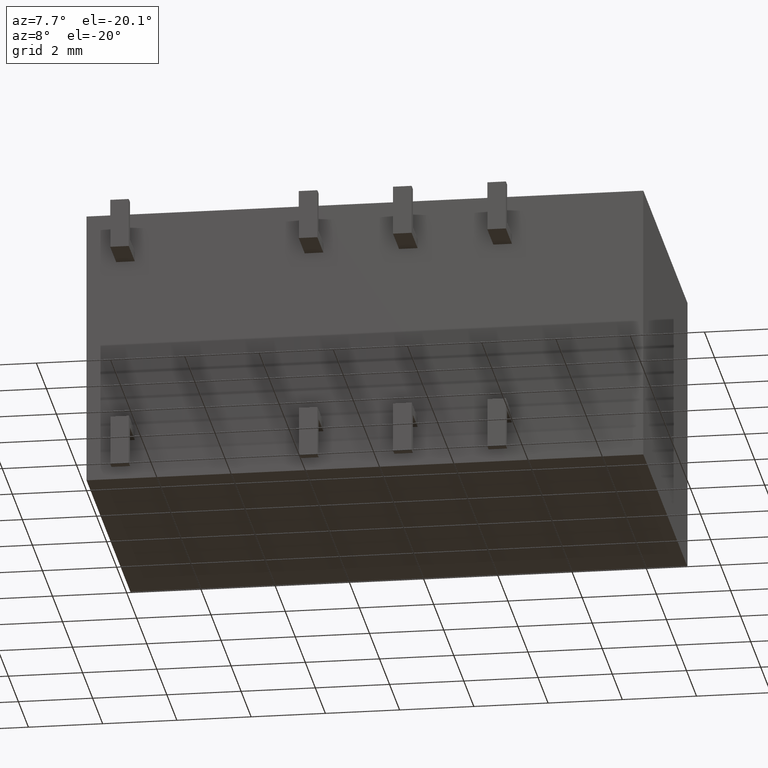
[diagram: clean part render]
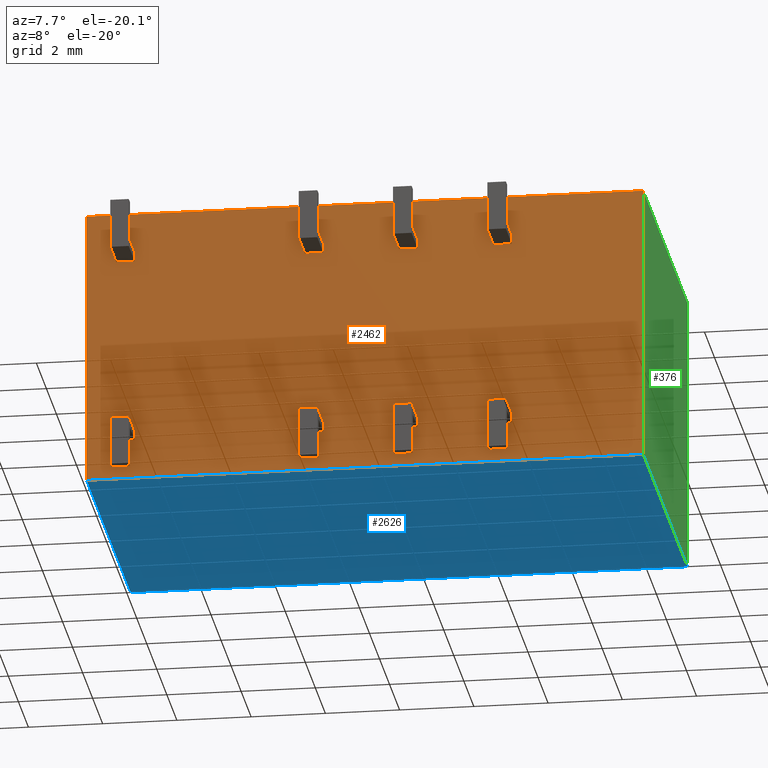
[diagram: same view with three faces highlighted in distinct colors, each labeled with its STEP entity id]
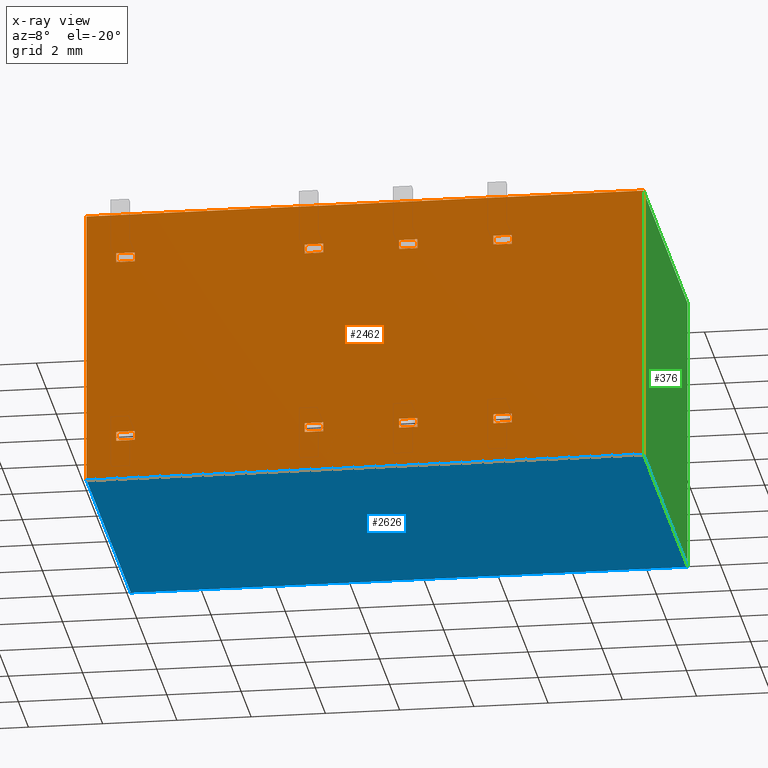
[diagram: x-ray of the same camera — body ghosted, the three highlighted faces saturated]
A machine part, auxiliary view with three faces highlighted in distinct colors.
The next image is the same camera in x-ray (body ghosted, the three faces saturated) — at least one of them is partly hidden behind the body in this view.
Their STEP definitions:

[orange] entity #2462 — the highlighted planar face has unit normal (0, -1, 0).
#125 = EDGE_CURVE ( 'NONE', #807, #4202, #2113, .T. ) ;
#127 = DIRECTION ( 'NONE',  ( 1.000000000000000000, 0.0000000000000000000, 0.0000000000000000000 ) ) ;
#177 = DIRECTION ( 'NONE',  ( 1.000000000000000000, 0.0000000000000000000, 0.0000000000000000000 ) ) ;
#196 = VECTOR ( 'NONE', #1744, 1000.000000000000000 ) ;
#197 = DIRECTION ( 'NONE',  ( -1.000000000000000000, -0.0000000000000000000, -0.0000000000000000000 ) ) ;
#199 = PLANE ( 'NONE',  #2382 ) ;
#228 = VERTEX_POINT ( 'NONE', #3025 ) ;
#233 = CARTESIAN_POINT ( 'NONE',  ( 8.919999999999999900, 0.0000000000000000000, -1.335000000000000000 ) ) ;
#240 = EDGE_CURVE ( 'NONE', #1503, #2900, #1002, .T. ) ;
#243 = ORIENTED_EDGE ( 'NONE', *, *, #3757, .T. ) ;
#254 = CARTESIAN_POINT ( 'NONE',  ( 10.95999999999999900, 3.177958443787379800E-016, -1.334999999999999700 ) ) ;
#263 = CARTESIAN_POINT ( 'NONE',  ( 10.95999999999999900, 2.871796744000541500E-016, -1.084999999999999500 ) ) ;
#266 = VERTEX_POINT ( 'NONE', #5043 ) ;
#334 = ORIENTED_EDGE ( 'NONE', *, *, #3109, .F. ) ;
#340 = CARTESIAN_POINT ( 'NONE',  ( 8.919999999999999900, 3.177958443787379800E-016, -6.165000000000000000 ) ) ;
#343 = EDGE_LOOP ( 'NONE', ( #1833, #2194, #1478, #4646 ) ) ;
#362 = VECTOR ( 'NONE', #127, 1000.000000000000000 ) ;
#429 = VECTOR ( 'NONE', #177, 1000.000000000000000 ) ;
#442 = ORIENTED_EDGE ( 'NONE', *, *, #1710, .F. ) ;
#449 = VECTOR ( 'NONE', #4125, 1000.000000000000000 ) ;
#465 = CARTESIAN_POINT ( 'NONE',  ( 11.45999999999999900, 0.0000000000000000000, -6.415000000000000900 ) ) ;
#506 = CARTESIAN_POINT ( 'NONE',  ( 0.7999999999999988200, 3.177958443787379800E-016, -1.334999999999999700 ) ) ;
#508 = CARTESIAN_POINT ( 'NONE',  ( 10.95999999999999900, 2.871796744000541500E-016, -1.084999999999999500 ) ) ;
#514 = EDGE_CURVE ( 'NONE', #1796, #2900, #3482, .T. ) ;
#516 = ORIENTED_EDGE ( 'NONE', *, *, #2283, .F. ) ;
#537 = EDGE_CURVE ( 'NONE', #4011, #2357, #4962, .T. ) ;
#576 = LINE ( 'NONE', #1582, #1410 ) ;
#581 = VECTOR ( 'NONE', #2763, 1000.000000000000000 ) ;
#610 = VERTEX_POINT ( 'NONE', #4277 ) ;
#611 = CARTESIAN_POINT ( 'NONE',  ( 0.0000000000000000000, 0.0000000000000000000, 0.0000000000000000000 ) ) ;
#653 = EDGE_CURVE ( 'NONE', #4214, #4323, #1648, .T. ) ;
#654 = CARTESIAN_POINT ( 'NONE',  ( 5.879999999999999000, 3.177958443787379800E-016, -1.334999999999999700 ) ) ;
#663 = CARTESIAN_POINT ( 'NONE',  ( 0.7999999999999988200, 3.177958443787379800E-016, -6.165000000000000000 ) ) ;
#735 = EDGE_LOOP ( 'NONE', ( #4317, #5140, #3827, #4966 ) ) ;
#741 = ORIENTED_EDGE ( 'NONE', *, *, #514, .T. ) ;
#742 = VECTOR ( 'NONE', #3556, 1000.000000000000000 ) ;
#744 = LINE ( 'NONE', #4734, #997 ) ;
#760 = LINE ( 'NONE', #5265, #1455 ) ;
#777 = VECTOR ( 'NONE', #4113, 1000.000000000000000 ) ;
#807 = VERTEX_POINT ( 'NONE', #2204 ) ;
#873 = ORIENTED_EDGE ( 'NONE', *, *, #4958, .T. ) ;
#888 = VECTOR ( 'NONE', #1758, 1000.000000000000000 ) ;
#893 = CARTESIAN_POINT ( 'NONE',  ( 5.879999999999999000, 3.177958443787379800E-016, -6.165000000000000000 ) ) ;
#918 = CARTESIAN_POINT ( 'NONE',  ( 8.419999999999998200, 2.871796744000541500E-016, -1.084999999999999500 ) ) ;
#924 = CARTESIAN_POINT ( 'NONE',  ( 0.7999999999999988200, 2.871796744000541500E-016, -1.084999999999999500 ) ) ;
#938 = FACE_BOUND ( 'NONE', #3741, .T. ) ;
#985 = CARTESIAN_POINT ( 'NONE',  ( 5.879999999999999000, 2.871796744000541500E-016, -1.084999999999999500 ) ) ;
#991 = CARTESIAN_POINT ( 'NONE',  ( 6.379999999999999000, 0.0000000000000000000, -6.415000000000000900 ) ) ;
#997 = VECTOR ( 'NONE', #2664, 1000.000000000000000 ) ;
#1002 = LINE ( 'NONE', #3882, #4713 ) ;
#1012 = CARTESIAN_POINT ( 'NONE',  ( 0.0000000000000000000, 0.0000000000000000000, 0.0000000000000000000 ) ) ;
#1016 = EDGE_CURVE ( 'NONE', #4239, #1523, #5095, .T. ) ;
#1028 = LINE ( 'NONE', #3470, #2569 ) ;
#1037 = EDGE_CURVE ( 'NONE', #3406, #610, #3621, .T. ) ;
#1039 = DIRECTION ( 'NONE',  ( 1.000000000000000000, 0.0000000000000000000, 0.0000000000000000000 ) ) ;
#1045 = CARTESIAN_POINT ( 'NONE',  ( 1.299999999999998900, 0.0000000000000000000, -6.415000000000000900 ) ) ;
#1063 = DIRECTION ( 'NONE',  ( 0.0000000000000000000, -1.224646799147353200E-016, 1.000000000000000000 ) ) ;
#1104 = CARTESIAN_POINT ( 'NONE',  ( 0.0000000000000000000, 0.0000000000000000000, 0.0000000000000000000 ) ) ;
#1121 = VERTEX_POINT ( 'NONE', #924 ) ;
#1143 = VECTOR ( 'NONE', #197, 1000.000000000000000 ) ;
#1211 = EDGE_CURVE ( 'NONE', #4570, #2865, #4588, .T. ) ;
#1223 = ORIENTED_EDGE ( 'NONE', *, *, #1016, .F. ) ;
#1240 = VECTOR ( 'NONE', #1513, 1000.000000000000000 ) ;
#1245 = VERTEX_POINT ( 'NONE', #1104 ) ;
#1248 = EDGE_CURVE ( 'NONE', #1121, #4323, #4057, .T. ) ;
#1251 = CARTESIAN_POINT ( 'NONE',  ( 8.919999999999999900, 3.177958443787379800E-016, -1.334999999999999700 ) ) ;
#1261 = EDGE_CURVE ( 'NONE', #1245, #5215, #2383, .T. ) ;
#1274 = CARTESIAN_POINT ( 'NONE',  ( 0.7999999999999988200, 3.177958443787379800E-016, -6.165000000000000000 ) ) ;
#1294 = LINE ( 'NONE', #5023, #196 ) ;
#1295 = DIRECTION ( 'NONE',  ( 0.0000000000000000000, -1.224646799147353200E-016, -1.000000000000000000 ) ) ;
#1316 = EDGE_CURVE ( 'NONE', #3551, #1796, #2628, .T. ) ;
#1319 = CARTESIAN_POINT ( 'NONE',  ( 10.95999999999999900, 2.871796744000541500E-016, -6.415000000000000900 ) ) ;
#1333 = VECTOR ( 'NONE', #3726, 1000.000000000000000 ) ;
#1348 = LINE ( 'NONE', #508, #4678 ) ;
#1353 = EDGE_CURVE ( 'NONE', #5215, #4907, #576, .T. ) ;
#1359 = EDGE_CURVE ( 'NONE', #2865, #4131, #4802, .T. ) ;
#1398 = LINE ( 'NONE', #4593, #449 ) ;
#1410 = VECTOR ( 'NONE', #3662, 1000.000000000000000 ) ;
#1423 = DIRECTION ( 'NONE',  ( 1.000000000000000000, 0.0000000000000000000, 0.0000000000000000000 ) ) ;
#1436 = DIRECTION ( 'NONE',  ( 0.0000000000000000000, -1.224646799147353200E-016, 1.000000000000000000 ) ) ;
#1452 = EDGE_LOOP ( 'NONE', ( #2953, #2984, #4378, #1719 ) ) ;
#1455 = VECTOR ( 'NONE', #1615, 1000.000000000000000 ) ;
#1461 = LINE ( 'NONE', #2554, #4991 ) ;
#1478 = ORIENTED_EDGE ( 'NONE', *, *, #2387, .T. ) ;
#1497 = DIRECTION ( 'NONE',  ( 0.0000000000000000000, -0.0000000000000000000, -1.000000000000000000 ) ) ;
#1503 = VERTEX_POINT ( 'NONE', #1319 ) ;
#1513 = DIRECTION ( 'NONE',  ( 0.0000000000000000000, -1.224646799147353200E-016, 1.000000000000000000 ) ) ;
#1523 = VERTEX_POINT ( 'NONE', #2104 ) ;
#1536 = LINE ( 'NONE', #1888, #4105 ) ;
#1582 = CARTESIAN_POINT ( 'NONE',  ( 15.00000000000000000, 0.0000000000000000000, 0.0000000000000000000 ) ) ;
#1615 = DIRECTION ( 'NONE',  ( 0.0000000000000000000, -1.224646799147353200E-016, -1.000000000000000000 ) ) ;
#1648 = LINE ( 'NONE', #3469, #3946 ) ;
#1652 = EDGE_CURVE ( 'NONE', #4570, #1838, #1028, .T. ) ;
#1706 = CARTESIAN_POINT ( 'NONE',  ( 8.919999999999999900, 3.177958443787379800E-016, -6.165000000000000000 ) ) ;
#1710 = EDGE_CURVE ( 'NONE', #1804, #5152, #3266, .T. ) ;
#1719 = ORIENTED_EDGE ( 'NONE', *, *, #3141, .F. ) ;
#1721 = VECTOR ( 'NONE', #4977, 1000.000000000000000 ) ;
#1744 = DIRECTION ( 'NONE',  ( 0.0000000000000000000, -1.224646799147353200E-016, 1.000000000000000000 ) ) ;
#1758 = DIRECTION ( 'NONE',  ( 0.0000000000000000000, -1.224646799147353200E-016, 1.000000000000000000 ) ) ;
#1796 = VERTEX_POINT ( 'NONE', #4007 ) ;
#1804 = VERTEX_POINT ( 'NONE', #2812 ) ;
#1833 = ORIENTED_EDGE ( 'NONE', *, *, #1211, .F. ) ;
#1838 = VERTEX_POINT ( 'NONE', #340 ) ;
#1848 = CARTESIAN_POINT ( 'NONE',  ( 6.379999999999999000, 2.871796744000541500E-016, -1.084999999999999500 ) ) ;
#1853 = LINE ( 'NONE', #654, #3897 ) ;
#1861 = CARTESIAN_POINT ( 'NONE',  ( 0.0000000000000000000, 0.0000000000000000000, -7.500000000000000000 ) ) ;
#1888 = CARTESIAN_POINT ( 'NONE',  ( 0.7999999999999988200, 3.177958443787379800E-016, -1.334999999999999700 ) ) ;
#1929 = CARTESIAN_POINT ( 'NONE',  ( 8.419999999999998200, 3.177958443787379800E-016, -1.334999999999999700 ) ) ;
#2001 = DIRECTION ( 'NONE',  ( 1.000000000000000000, 0.0000000000000000000, 0.0000000000000000000 ) ) ;
#2008 = VECTOR ( 'NONE', #3534, 1000.000000000000000 ) ;
#2031 = ORIENTED_EDGE ( 'NONE', *, *, #4281, .F. ) ;
#2034 = DIRECTION ( 'NONE',  ( 1.000000000000000000, 0.0000000000000000000, 0.0000000000000000000 ) ) ;
#2039 = CARTESIAN_POINT ( 'NONE',  ( 11.45999999999999900, 2.871796744000541500E-016, -1.084999999999999500 ) ) ;
#2040 = FACE_BOUND ( 'NONE', #735, .T. ) ;
#2104 = CARTESIAN_POINT ( 'NONE',  ( 5.879999999999999000, 2.871796744000541500E-016, -6.415000000000000900 ) ) ;
#2112 = DIRECTION ( 'NONE',  ( 1.000000000000000000, 0.0000000000000000000, 0.0000000000000000000 ) ) ;
#2113 = LINE ( 'NONE', #918, #1721 ) ;
#2129 = CARTESIAN_POINT ( 'NONE',  ( 0.0000000000000000000, 0.0000000000000000000, -7.500000000000000000 ) ) ;
#2149 = CARTESIAN_POINT ( 'NONE',  ( 5.879999999999999000, 3.177958443787379800E-016, -6.165000000000000000 ) ) ;
#2194 = ORIENTED_EDGE ( 'NONE', *, *, #1652, .T. ) ;
#2204 = CARTESIAN_POINT ( 'NONE',  ( 8.419999999999998200, 2.871796744000541500E-016, -1.084999999999999500 ) ) ;
#2283 = EDGE_CURVE ( 'NONE', #3551, #1503, #760, .T. ) ;
#2292 = CARTESIAN_POINT ( 'NONE',  ( 8.419999999999998200, 3.177958443787379800E-016, -6.165000000000000000 ) ) ;
#2315 = EDGE_CURVE ( 'NONE', #4239, #4011, #2813, .T. ) ;
#2325 = CARTESIAN_POINT ( 'NONE',  ( 15.00000000000000000, 0.0000000000000000000, 0.0000000000000000000 ) ) ;
#2357 = VERTEX_POINT ( 'NONE', #991 ) ;
#2367 = DIRECTION ( 'NONE',  ( 1.000000000000000000, 0.0000000000000000000, 0.0000000000000000000 ) ) ;
#2382 = AXIS2_PLACEMENT_3D ( 'NONE', #611, #3472, #1497 ) ;
#2383 = LINE ( 'NONE', #4071, #777 ) ;
#2387 = EDGE_CURVE ( 'NONE', #1838, #4131, #4662, .T. ) ;
#2432 = EDGE_CURVE ( 'NONE', #3406, #2609, #4216, .T. ) ;
#2462 = ADVANCED_FACE ( 'NONE', ( #5283, #3108, #3555, #2040, #2862, #2598, #4150, #938, #5030 ), #199, .T. ) ;
#2495 = EDGE_CURVE ( 'NONE', #3375, #1245, #4386, .T. ) ;
#2511 = DIRECTION ( 'NONE',  ( 0.0000000000000000000, -1.224646799147353200E-016, 1.000000000000000000 ) ) ;
#2526 = CARTESIAN_POINT ( 'NONE',  ( 0.7999999999999988200, 3.177958443787379800E-016, -6.165000000000000000 ) ) ;
#2530 = ORIENTED_EDGE ( 'NONE', *, *, #3557, .F. ) ;
#2554 = CARTESIAN_POINT ( 'NONE',  ( 5.879999999999999000, 3.177958443787379800E-016, -1.334999999999999700 ) ) ;
#2569 = VECTOR ( 'NONE', #5157, 1000.000000000000000 ) ;
#2587 = ORIENTED_EDGE ( 'NONE', *, *, #2969, .T. ) ;
#2598 = FACE_BOUND ( 'NONE', #343, .T. ) ;
#2605 = ORIENTED_EDGE ( 'NONE', *, *, #5129, .F. ) ;
#2609 = VERTEX_POINT ( 'NONE', #4009 ) ;
#2614 = ORIENTED_EDGE ( 'NONE', *, *, #1261, .F. ) ;
#2628 = LINE ( 'NONE', #4093, #3717 ) ;
#2639 = DIRECTION ( 'NONE',  ( 1.000000000000000000, 0.0000000000000000000, 0.0000000000000000000 ) ) ;
#2664 = DIRECTION ( 'NONE',  ( 1.000000000000000000, 0.0000000000000000000, 0.0000000000000000000 ) ) ;
#2680 = CARTESIAN_POINT ( 'NONE',  ( 6.379999999999999000, 3.177958443787379800E-016, -1.334999999999999700 ) ) ;
#2763 = DIRECTION ( 'NONE',  ( 1.000000000000000000, 0.0000000000000000000, 0.0000000000000000000 ) ) ;
#2765 = CARTESIAN_POINT ( 'NONE',  ( 0.7999999999999988200, 2.871796744000541500E-016, -6.415000000000000900 ) ) ;
#2790 = VERTEX_POINT ( 'NONE', #4911 ) ;
#2812 = CARTESIAN_POINT ( 'NONE',  ( 6.379999999999999000, 0.0000000000000000000, -1.335000000000000000 ) ) ;
#2813 = LINE ( 'NONE', #2149, #3896 ) ;
#2862 = FACE_BOUND ( 'NONE', #4207, .T. ) ;
#2865 = VERTEX_POINT ( 'NONE', #4212 ) ;
#2900 = VERTEX_POINT ( 'NONE', #465 ) ;
#2914 = CARTESIAN_POINT ( 'NONE',  ( 6.379999999999999000, 3.177958443787379800E-016, -6.165000000000000000 ) ) ;
#2928 = CARTESIAN_POINT ( 'NONE',  ( 5.879999999999999000, 3.177958443787379800E-016, -6.165000000000000000 ) ) ;
#2931 = VECTOR ( 'NONE', #1295, 1000.000000000000000 ) ;
#2936 = LINE ( 'NONE', #2765, #5099 ) ;
#2953 = ORIENTED_EDGE ( 'NONE', *, *, #4922, .T. ) ;
#2969 = EDGE_CURVE ( 'NONE', #5183, #5152, #3753, .T. ) ;
#2984 = ORIENTED_EDGE ( 'NONE', *, *, #1248, .T. ) ;
#3001 = EDGE_LOOP ( 'NONE', ( #516, #3623, #741, #3845 ) ) ;
#3025 = CARTESIAN_POINT ( 'NONE',  ( 11.45999999999999900, 0.0000000000000000000, -1.335000000000000000 ) ) ;
#3038 = EDGE_CURVE ( 'NONE', #3966, #807, #3689, .T. ) ;
#3049 = CARTESIAN_POINT ( 'NONE',  ( 6.379999999999999000, 3.177958443787379800E-016, -6.165000000000000000 ) ) ;
#3057 = LINE ( 'NONE', #506, #888 ) ;
#3102 = ORIENTED_EDGE ( 'NONE', *, *, #537, .T. ) ;
#3108 = FACE_BOUND ( 'NONE', #4532, .T. ) ;
#3109 = EDGE_CURVE ( 'NONE', #2790, #1804, #1853, .T. ) ;
#3135 = VERTEX_POINT ( 'NONE', #4725 ) ;
#3141 = EDGE_CURVE ( 'NONE', #3135, #4214, #1536, .T. ) ;
#3143 = DIRECTION ( 'NONE',  ( -0.0000000000000000000, -0.0000000000000000000, 1.000000000000000000 ) ) ;
#3239 = VECTOR ( 'NONE', #3953, 1000.000000000000000 ) ;
#3258 = LINE ( 'NONE', #4960, #4795 ) ;
#3266 = LINE ( 'NONE', #2680, #5186 ) ;
#3293 = CARTESIAN_POINT ( 'NONE',  ( 1.299999999999998900, 2.871796744000541500E-016, -1.084999999999999500 ) ) ;
#3296 = VECTOR ( 'NONE', #3143, 1000.000000000000000 ) ;
#3307 = EDGE_CURVE ( 'NONE', #3963, #4202, #3824, .T. ) ;
#3375 = VERTEX_POINT ( 'NONE', #2129 ) ;
#3379 = VECTOR ( 'NONE', #4282, 1000.000000000000000 ) ;
#3399 = ORIENTED_EDGE ( 'NONE', *, *, #2495, .F. ) ;
#3406 = VERTEX_POINT ( 'NONE', #2526 ) ;
#3469 = CARTESIAN_POINT ( 'NONE',  ( 1.299999999999998900, 3.177958443787379800E-016, -1.334999999999999700 ) ) ;
#3470 = CARTESIAN_POINT ( 'NONE',  ( 8.419999999999998200, 3.177958443787379800E-016, -6.165000000000000000 ) ) ;
#3472 = DIRECTION ( 'NONE',  ( 0.0000000000000000000, -1.000000000000000000, 0.0000000000000000000 ) ) ;
#3478 = EDGE_CURVE ( 'NONE', #3966, #3963, #4223, .T. ) ;
#3482 = LINE ( 'NONE', #4489, #4698 ) ;
#3534 = DIRECTION ( 'NONE',  ( 1.000000000000000000, 0.0000000000000000000, 0.0000000000000000000 ) ) ;
#3551 = VERTEX_POINT ( 'NONE', #3853 ) ;
#3555 = FACE_BOUND ( 'NONE', #4762, .T. ) ;
#3556 = DIRECTION ( 'NONE',  ( 0.0000000000000000000, -1.224646799147353200E-016, -1.000000000000000000 ) ) ;
#3557 = EDGE_CURVE ( 'NONE', #1523, #2357, #744, .T. ) ;
#3592 = LINE ( 'NONE', #254, #2008 ) ;
#3595 = ORIENTED_EDGE ( 'NONE', *, *, #4003, .F. ) ;
#3621 = LINE ( 'NONE', #1274, #2931 ) ;
#3623 = ORIENTED_EDGE ( 'NONE', *, *, #1316, .T. ) ;
#3649 = EDGE_CURVE ( 'NONE', #610, #5221, #2936, .T. ) ;
#3662 = DIRECTION ( 'NONE',  ( 0.0000000000000000000, 0.0000000000000000000, -1.000000000000000000 ) ) ;
#3689 = LINE ( 'NONE', #1929, #1240 ) ;
#3698 = DIRECTION ( 'NONE',  ( 0.0000000000000000000, -1.224646799147353200E-016, -1.000000000000000000 ) ) ;
#3710 = LINE ( 'NONE', #1861, #1143 ) ;
#3717 = VECTOR ( 'NONE', #2034, 1000.000000000000000 ) ;
#3726 = DIRECTION ( 'NONE',  ( 0.0000000000000000000, -1.224646799147353200E-016, 1.000000000000000000 ) ) ;
#3741 = EDGE_LOOP ( 'NONE', ( #873, #243, #2031, #2605 ) ) ;
#3746 = DIRECTION ( 'NONE',  ( 0.0000000000000000000, -1.224646799147353200E-016, -1.000000000000000000 ) ) ;
#3753 = LINE ( 'NONE', #985, #429 ) ;
#3757 = EDGE_CURVE ( 'NONE', #4534, #4894, #1348, .T. ) ;
#3770 = CARTESIAN_POINT ( 'NONE',  ( 1.299999999999998900, 0.0000000000000000000, -1.335000000000000000 ) ) ;
#3824 = LINE ( 'NONE', #1251, #1333 ) ;
#3827 = ORIENTED_EDGE ( 'NONE', *, *, #3307, .F. ) ;
#3845 = ORIENTED_EDGE ( 'NONE', *, *, #240, .F. ) ;
#3853 = CARTESIAN_POINT ( 'NONE',  ( 10.95999999999999900, 3.177958443787379800E-016, -6.165000000000000000 ) ) ;
#3882 = CARTESIAN_POINT ( 'NONE',  ( 10.95999999999999900, 2.871796744000541500E-016, -6.415000000000000900 ) ) ;
#3896 = VECTOR ( 'NONE', #2639, 1000.000000000000000 ) ;
#3897 = VECTOR ( 'NONE', #1039, 1000.000000000000000 ) ;
#3946 = VECTOR ( 'NONE', #1436, 1000.000000000000000 ) ;
#3953 = DIRECTION ( 'NONE',  ( 1.000000000000000000, 0.0000000000000000000, 0.0000000000000000000 ) ) ;
#3963 = VERTEX_POINT ( 'NONE', #233 ) ;
#3966 = VERTEX_POINT ( 'NONE', #5102 ) ;
#4003 = EDGE_CURVE ( 'NONE', #4907, #3375, #3710, .T. ) ;
#4007 = CARTESIAN_POINT ( 'NONE',  ( 11.45999999999999900, 3.177958443787379800E-016, -6.165000000000000000 ) ) ;
#4009 = CARTESIAN_POINT ( 'NONE',  ( 1.299999999999998900, 3.177958443787379800E-016, -6.165000000000000000 ) ) ;
#4011 = VERTEX_POINT ( 'NONE', #3049 ) ;
#4021 = VECTOR ( 'NONE', #3746, 1000.000000000000000 ) ;
#4044 = ORIENTED_EDGE ( 'NONE', *, *, #3649, .F. ) ;
#4057 = LINE ( 'NONE', #5197, #581 ) ;
#4070 = ORIENTED_EDGE ( 'NONE', *, *, #4289, .T. ) ;
#4071 = CARTESIAN_POINT ( 'NONE',  ( 0.0000000000000000000, 0.0000000000000000000, 0.0000000000000000000 ) ) ;
#4081 = ORIENTED_EDGE ( 'NONE', *, *, #2315, .T. ) ;
#4093 = CARTESIAN_POINT ( 'NONE',  ( 10.95999999999999900, 3.177958443787379800E-016, -6.165000000000000000 ) ) ;
#4105 = VECTOR ( 'NONE', #4338, 1000.000000000000000 ) ;
#4113 = DIRECTION ( 'NONE',  ( 1.000000000000000000, 0.0000000000000000000, 0.0000000000000000000 ) ) ;
#4122 = VECTOR ( 'NONE', #2001, 1000.000000000000000 ) ;
#4125 = DIRECTION ( 'NONE',  ( 0.0000000000000000000, -1.224646799147353200E-016, -1.000000000000000000 ) ) ;
#4131 = VERTEX_POINT ( 'NONE', #4443 ) ;
#4150 = FACE_BOUND ( 'NONE', #3001, .T. ) ;
#4192 = DIRECTION ( 'NONE',  ( 0.0000000000000000000, -1.224646799147353200E-016, 1.000000000000000000 ) ) ;
#4202 = VERTEX_POINT ( 'NONE', #4944 ) ;
#4207 = EDGE_LOOP ( 'NONE', ( #1223, #4081, #3102, #2530 ) ) ;
#4212 = CARTESIAN_POINT ( 'NONE',  ( 8.419999999999998200, 2.871796744000541500E-016, -6.415000000000000900 ) ) ;
#4214 = VERTEX_POINT ( 'NONE', #3770 ) ;
#4216 = LINE ( 'NONE', #663, #3239 ) ;
#4223 = LINE ( 'NONE', #5028, #362 ) ;
#4239 = VERTEX_POINT ( 'NONE', #2928 ) ;
#4250 = EDGE_LOOP ( 'NONE', ( #3399, #3595, #4403, #2614 ) ) ;
#4259 = EDGE_CURVE ( 'NONE', #2609, #5221, #1398, .T. ) ;
#4277 = CARTESIAN_POINT ( 'NONE',  ( 0.7999999999999988200, 2.871796744000541500E-016, -6.415000000000000900 ) ) ;
#4281 = EDGE_CURVE ( 'NONE', #228, #4894, #3258, .T. ) ;
#4282 = DIRECTION ( 'NONE',  ( 0.0000000000000000000, -1.224646799147353200E-016, -1.000000000000000000 ) ) ;
#4289 = EDGE_CURVE ( 'NONE', #2790, #5183, #1461, .T. ) ;
#4317 = ORIENTED_EDGE ( 'NONE', *, *, #3038, .T. ) ;
#4323 = VERTEX_POINT ( 'NONE', #3293 ) ;
#4338 = DIRECTION ( 'NONE',  ( 1.000000000000000000, 0.0000000000000000000, 0.0000000000000000000 ) ) ;
#4378 = ORIENTED_EDGE ( 'NONE', *, *, #653, .F. ) ;
#4386 = LINE ( 'NONE', #1012, #3296 ) ;
#4403 = ORIENTED_EDGE ( 'NONE', *, *, #1353, .F. ) ;
#4443 = CARTESIAN_POINT ( 'NONE',  ( 8.919999999999999900, 0.0000000000000000000, -6.415000000000000900 ) ) ;
#4489 = CARTESIAN_POINT ( 'NONE',  ( 11.45999999999999900, 3.177958443787379800E-016, -6.165000000000000000 ) ) ;
#4532 = EDGE_LOOP ( 'NONE', ( #5016, #4587, #5044, #4044 ) ) ;
#4534 = VERTEX_POINT ( 'NONE', #263 ) ;
#4570 = VERTEX_POINT ( 'NONE', #4752 ) ;
#4587 = ORIENTED_EDGE ( 'NONE', *, *, #2432, .T. ) ;
#4588 = LINE ( 'NONE', #2292, #742 ) ;
#4593 = CARTESIAN_POINT ( 'NONE',  ( 1.299999999999998900, 3.177958443787379800E-016, -6.165000000000000000 ) ) ;
#4646 = ORIENTED_EDGE ( 'NONE', *, *, #1359, .F. ) ;
#4662 = LINE ( 'NONE', #1706, #3379 ) ;
#4678 = VECTOR ( 'NONE', #2112, 1000.000000000000000 ) ;
#4698 = VECTOR ( 'NONE', #4872, 1000.000000000000000 ) ;
#4713 = VECTOR ( 'NONE', #1423, 1000.000000000000000 ) ;
#4725 = CARTESIAN_POINT ( 'NONE',  ( 0.7999999999999988200, 3.177958443787379800E-016, -1.334999999999999700 ) ) ;
#4734 = CARTESIAN_POINT ( 'NONE',  ( 5.879999999999999000, 2.871796744000541500E-016, -6.415000000000000900 ) ) ;
#4752 = CARTESIAN_POINT ( 'NONE',  ( 8.419999999999998200, 3.177958443787379800E-016, -6.165000000000000000 ) ) ;
#4762 = EDGE_LOOP ( 'NONE', ( #4070, #2587, #442, #334 ) ) ;
#4790 = CARTESIAN_POINT ( 'NONE',  ( 5.879999999999999000, 2.871796744000541500E-016, -1.084999999999999500 ) ) ;
#4795 = VECTOR ( 'NONE', #2511, 1000.000000000000000 ) ;
#4802 = LINE ( 'NONE', #5307, #4122 ) ;
#4872 = DIRECTION ( 'NONE',  ( 0.0000000000000000000, -1.224646799147353200E-016, -1.000000000000000000 ) ) ;
#4894 = VERTEX_POINT ( 'NONE', #2039 ) ;
#4907 = VERTEX_POINT ( 'NONE', #5293 ) ;
#4911 = CARTESIAN_POINT ( 'NONE',  ( 5.879999999999999000, 3.177958443787379800E-016, -1.334999999999999700 ) ) ;
#4922 = EDGE_CURVE ( 'NONE', #3135, #1121, #3057, .T. ) ;
#4944 = CARTESIAN_POINT ( 'NONE',  ( 8.919999999999999900, 2.871796744000541500E-016, -1.084999999999999500 ) ) ;
#4958 = EDGE_CURVE ( 'NONE', #266, #4534, #1294, .T. ) ;
#4960 = CARTESIAN_POINT ( 'NONE',  ( 11.45999999999999900, 3.177958443787379800E-016, -1.334999999999999700 ) ) ;
#4962 = LINE ( 'NONE', #2914, #5027 ) ;
#4966 = ORIENTED_EDGE ( 'NONE', *, *, #3478, .F. ) ;
#4977 = DIRECTION ( 'NONE',  ( 1.000000000000000000, 0.0000000000000000000, 0.0000000000000000000 ) ) ;
#4991 = VECTOR ( 'NONE', #4192, 1000.000000000000000 ) ;
#5016 = ORIENTED_EDGE ( 'NONE', *, *, #1037, .F. ) ;
#5023 = CARTESIAN_POINT ( 'NONE',  ( 10.95999999999999900, 3.177958443787379800E-016, -1.334999999999999700 ) ) ;
#5027 = VECTOR ( 'NONE', #3698, 1000.000000000000000 ) ;
#5028 = CARTESIAN_POINT ( 'NONE',  ( 8.419999999999998200, 3.177958443787379800E-016, -1.334999999999999700 ) ) ;
#5030 = FACE_OUTER_BOUND ( 'NONE', #4250, .T. ) ;
#5043 = CARTESIAN_POINT ( 'NONE',  ( 10.95999999999999900, 3.177958443787379800E-016, -1.334999999999999700 ) ) ;
#5044 = ORIENTED_EDGE ( 'NONE', *, *, #4259, .T. ) ;
#5095 = LINE ( 'NONE', #893, #4021 ) ;
#5099 = VECTOR ( 'NONE', #2367, 1000.000000000000000 ) ;
#5102 = CARTESIAN_POINT ( 'NONE',  ( 8.419999999999998200, 3.177958443787379800E-016, -1.334999999999999700 ) ) ;
#5129 = EDGE_CURVE ( 'NONE', #266, #228, #3592, .T. ) ;
#5140 = ORIENTED_EDGE ( 'NONE', *, *, #125, .T. ) ;
#5152 = VERTEX_POINT ( 'NONE', #1848 ) ;
#5157 = DIRECTION ( 'NONE',  ( 1.000000000000000000, 0.0000000000000000000, 0.0000000000000000000 ) ) ;
#5183 = VERTEX_POINT ( 'NONE', #4790 ) ;
#5186 = VECTOR ( 'NONE', #1063, 1000.000000000000000 ) ;
#5197 = CARTESIAN_POINT ( 'NONE',  ( 0.7999999999999988200, 2.871796744000541500E-016, -1.084999999999999500 ) ) ;
#5215 = VERTEX_POINT ( 'NONE', #2325 ) ;
#5221 = VERTEX_POINT ( 'NONE', #1045 ) ;
#5265 = CARTESIAN_POINT ( 'NONE',  ( 10.95999999999999900, 3.177958443787379800E-016, -6.165000000000000000 ) ) ;
#5283 = FACE_BOUND ( 'NONE', #1452, .T. ) ;
#5293 = CARTESIAN_POINT ( 'NONE',  ( 15.00000000000000000, 0.0000000000000000000, -7.500000000000000000 ) ) ;
#5307 = CARTESIAN_POINT ( 'NONE',  ( 8.419999999999998200, 2.871796744000541500E-016, -6.415000000000000900 ) ) ;

[blue] entity #2626 — the highlighted planar face has unit normal (0, 0, 1).
#148 = DIRECTION ( 'NONE',  ( -1.000000000000000000, -0.0000000000000000000, -0.0000000000000000000 ) ) ;
#149 = VECTOR ( 'NONE', #5208, 1000.000000000000000 ) ;
#197 = DIRECTION ( 'NONE',  ( -1.000000000000000000, -0.0000000000000000000, -0.0000000000000000000 ) ) ;
#500 = ORIENTED_EDGE ( 'NONE', *, *, #5050, .F. ) ;
#1000 = AXIS2_PLACEMENT_3D ( 'NONE', #3712, #1629, #3672 ) ;
#1143 = VECTOR ( 'NONE', #197, 1000.000000000000000 ) ;
#1311 = VERTEX_POINT ( 'NONE', #5241 ) ;
#1629 = DIRECTION ( 'NONE',  ( 0.0000000000000000000, 0.0000000000000000000, 1.000000000000000000 ) ) ;
#1768 = LINE ( 'NONE', #3161, #149 ) ;
#1861 = CARTESIAN_POINT ( 'NONE',  ( 0.0000000000000000000, 0.0000000000000000000, -7.500000000000000000 ) ) ;
#1890 = ORIENTED_EDGE ( 'NONE', *, *, #2602, .F. ) ;
#2129 = CARTESIAN_POINT ( 'NONE',  ( 0.0000000000000000000, 0.0000000000000000000, -7.500000000000000000 ) ) ;
#2388 = VECTOR ( 'NONE', #148, 1000.000000000000000 ) ;
#2556 = VECTOR ( 'NONE', #3814, 1000.000000000000000 ) ;
#2602 = EDGE_CURVE ( 'NONE', #1311, #3375, #1768, .T. ) ;
#2626 = ADVANCED_FACE ( 'NONE', ( #4380 ), #4415, .F. ) ;
#3161 = CARTESIAN_POINT ( 'NONE',  ( 0.0000000000000000000, 8.800000000000000700, -7.500000000000000000 ) ) ;
#3375 = VERTEX_POINT ( 'NONE', #2129 ) ;
#3433 = CARTESIAN_POINT ( 'NONE',  ( 15.00000000000000000, 8.800000000000000700, -7.500000000000000000 ) ) ;
#3458 = CARTESIAN_POINT ( 'NONE',  ( 0.0000000000000000000, 8.800000000000000700, -7.500000000000000000 ) ) ;
#3486 = VERTEX_POINT ( 'NONE', #4240 ) ;
#3635 = LINE ( 'NONE', #3433, #2556 ) ;
#3672 = DIRECTION ( 'NONE',  ( 1.000000000000000000, 0.0000000000000000000, -0.0000000000000000000 ) ) ;
#3710 = LINE ( 'NONE', #1861, #1143 ) ;
#3712 = CARTESIAN_POINT ( 'NONE',  ( 0.0000000000000000000, 8.800000000000000700, -7.500000000000000000 ) ) ;
#3814 = DIRECTION ( 'NONE',  ( -0.0000000000000000000, -1.000000000000000000, -0.0000000000000000000 ) ) ;
#4003 = EDGE_CURVE ( 'NONE', #4907, #3375, #3710, .T. ) ;
#4240 = CARTESIAN_POINT ( 'NONE',  ( 15.00000000000000000, 8.800000000000000700, -7.500000000000000000 ) ) ;
#4307 = LINE ( 'NONE', #3458, #2388 ) ;
#4380 = FACE_OUTER_BOUND ( 'NONE', #5295, .T. ) ;
#4407 = EDGE_CURVE ( 'NONE', #3486, #4907, #3635, .T. ) ;
#4415 = PLANE ( 'NONE',  #1000 ) ;
#4658 = ORIENTED_EDGE ( 'NONE', *, *, #4003, .T. ) ;
#4907 = VERTEX_POINT ( 'NONE', #5293 ) ;
#5050 = EDGE_CURVE ( 'NONE', #3486, #1311, #4307, .T. ) ;
#5208 = DIRECTION ( 'NONE',  ( -0.0000000000000000000, -1.000000000000000000, -0.0000000000000000000 ) ) ;
#5241 = CARTESIAN_POINT ( 'NONE',  ( 0.0000000000000000000, 8.800000000000000700, -7.500000000000000000 ) ) ;
#5293 = CARTESIAN_POINT ( 'NONE',  ( 15.00000000000000000, 0.0000000000000000000, -7.500000000000000000 ) ) ;
#5295 = EDGE_LOOP ( 'NONE', ( #4658, #1890, #500, #5297 ) ) ;
#5297 = ORIENTED_EDGE ( 'NONE', *, *, #4407, .T. ) ;

[green] entity #376 — the highlighted planar face has unit normal (-1, 0, 0).
#157 = CARTESIAN_POINT ( 'NONE',  ( 15.00000000000000000, 8.800000000000000700, 0.0000000000000000000 ) ) ;
#195 = AXIS2_PLACEMENT_3D ( 'NONE', #346, #1596, #1578 ) ;
#346 = CARTESIAN_POINT ( 'NONE',  ( 15.00000000000000000, 8.800000000000000700, 0.0000000000000000000 ) ) ;
#376 = ADVANCED_FACE ( 'NONE', ( #1054 ), #693, .F. ) ;
#423 = VECTOR ( 'NONE', #2232, 1000.000000000000000 ) ;
#576 = LINE ( 'NONE', #1582, #1410 ) ;
#595 = EDGE_CURVE ( 'NONE', #4438, #5215, #666, .T. ) ;
#666 = LINE ( 'NONE', #1792, #423 ) ;
#693 = PLANE ( 'NONE',  #195 ) ;
#821 = ORIENTED_EDGE ( 'NONE', *, *, #595, .T. ) ;
#862 = ORIENTED_EDGE ( 'NONE', *, *, #4508, .F. ) ;
#1036 = DIRECTION ( 'NONE',  ( 0.0000000000000000000, 0.0000000000000000000, -1.000000000000000000 ) ) ;
#1054 = FACE_OUTER_BOUND ( 'NONE', #1101, .T. ) ;
#1101 = EDGE_LOOP ( 'NONE', ( #2890, #2671, #862, #821 ) ) ;
#1353 = EDGE_CURVE ( 'NONE', #5215, #4907, #576, .T. ) ;
#1410 = VECTOR ( 'NONE', #3662, 1000.000000000000000 ) ;
#1578 = DIRECTION ( 'NONE',  ( 0.0000000000000000000, 0.0000000000000000000, 1.000000000000000000 ) ) ;
#1582 = CARTESIAN_POINT ( 'NONE',  ( 15.00000000000000000, 0.0000000000000000000, 0.0000000000000000000 ) ) ;
#1596 = DIRECTION ( 'NONE',  ( -1.000000000000000000, 0.0000000000000000000, 0.0000000000000000000 ) ) ;
#1792 = CARTESIAN_POINT ( 'NONE',  ( 15.00000000000000000, 8.800000000000000700, 0.0000000000000000000 ) ) ;
#2232 = DIRECTION ( 'NONE',  ( -0.0000000000000000000, -1.000000000000000000, -0.0000000000000000000 ) ) ;
#2325 = CARTESIAN_POINT ( 'NONE',  ( 15.00000000000000000, 0.0000000000000000000, 0.0000000000000000000 ) ) ;
#2556 = VECTOR ( 'NONE', #3814, 1000.000000000000000 ) ;
#2671 = ORIENTED_EDGE ( 'NONE', *, *, #4407, .F. ) ;
#2881 = VECTOR ( 'NONE', #1036, 1000.000000000000000 ) ;
#2890 = ORIENTED_EDGE ( 'NONE', *, *, #1353, .T. ) ;
#3433 = CARTESIAN_POINT ( 'NONE',  ( 15.00000000000000000, 8.800000000000000700, -7.500000000000000000 ) ) ;
#3486 = VERTEX_POINT ( 'NONE', #4240 ) ;
#3635 = LINE ( 'NONE', #3433, #2556 ) ;
#3662 = DIRECTION ( 'NONE',  ( 0.0000000000000000000, 0.0000000000000000000, -1.000000000000000000 ) ) ;
#3814 = DIRECTION ( 'NONE',  ( -0.0000000000000000000, -1.000000000000000000, -0.0000000000000000000 ) ) ;
#4240 = CARTESIAN_POINT ( 'NONE',  ( 15.00000000000000000, 8.800000000000000700, -7.500000000000000000 ) ) ;
#4407 = EDGE_CURVE ( 'NONE', #3486, #4907, #3635, .T. ) ;
#4409 = LINE ( 'NONE', #4700, #2881 ) ;
#4438 = VERTEX_POINT ( 'NONE', #157 ) ;
#4508 = EDGE_CURVE ( 'NONE', #4438, #3486, #4409, .T. ) ;
#4700 = CARTESIAN_POINT ( 'NONE',  ( 15.00000000000000000, 8.800000000000000700, 0.0000000000000000000 ) ) ;
#4907 = VERTEX_POINT ( 'NONE', #5293 ) ;
#5215 = VERTEX_POINT ( 'NONE', #2325 ) ;
#5293 = CARTESIAN_POINT ( 'NONE',  ( 15.00000000000000000, 0.0000000000000000000, -7.500000000000000000 ) ) ;